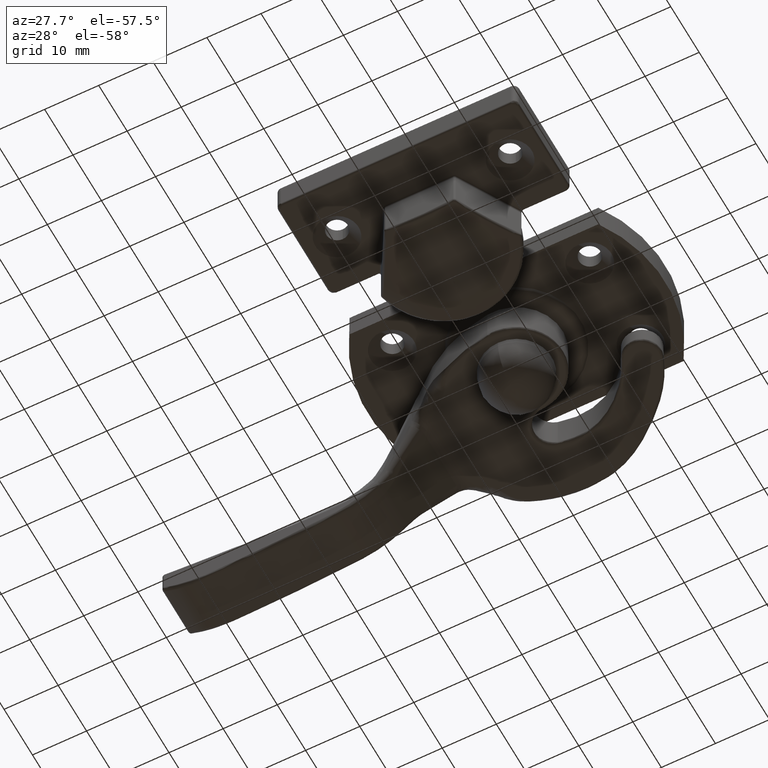
[diagram: clean part render]
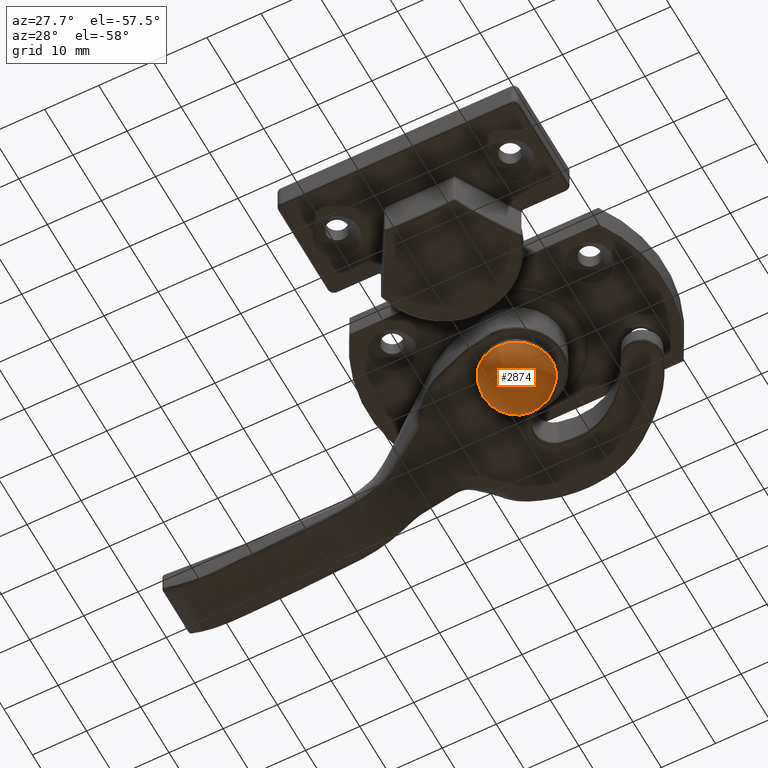
[diagram: same view with one face highlighted and labeled with its STEP entity id]
A machine part, auxiliary view. The second image highlights one B-rep face of the part: STEP entity #2874.
In plain terms, the highlighted spherical surface has radius 6.5 mm.
Its self-contained STEP definition (entity closure, byte-faithful):
#57=SPHERICAL_SURFACE('',#3041,6.5);
#727=FACE_OUTER_BOUND('',#919,.T.);
#919=EDGE_LOOP('',(#2247));
#1078=CIRCLE('',#3042,6.5);
#1287=VERTEX_POINT('',#6231);
#1634=EDGE_CURVE('',#1287,#1287,#1078,.T.);
#2247=ORIENTED_EDGE('',*,*,#1634,.T.);
#2874=ADVANCED_FACE('',(#727),#57,.T.);
#3041=AXIS2_PLACEMENT_3D('',#6230,#3390,#3391);
#3042=AXIS2_PLACEMENT_3D('',#6232,#3392,#3393);
#3390=DIRECTION('center_axis',(6.12323399573677E-17,0.,1.));
#3391=DIRECTION('ref_axis',(1.,0.,0.));
#3392=DIRECTION('center_axis',(0.,0.,1.));
#3393=DIRECTION('ref_axis',(1.,0.,0.));
#6230=CARTESIAN_POINT('Origin',(0.,0.,13.5));
#6231=CARTESIAN_POINT('',(-6.5,-7.9602041944578E-16,13.5));
#6232=CARTESIAN_POINT('Origin',(0.,0.,13.5));